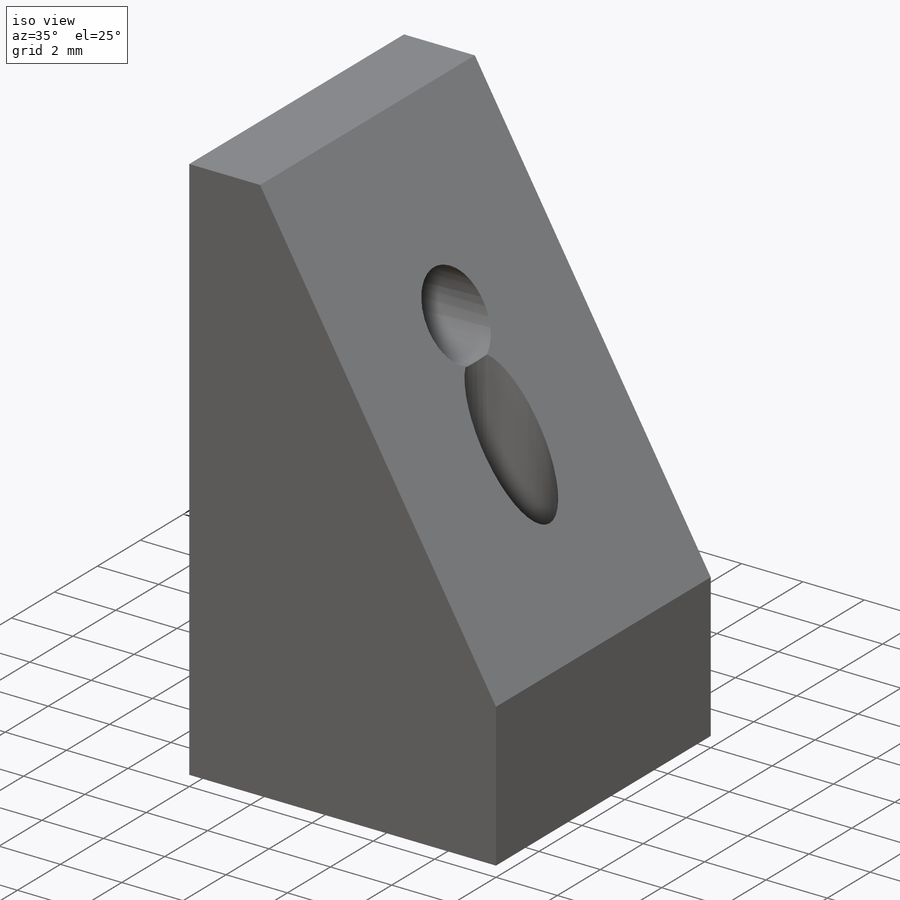
[diagram: iso view]
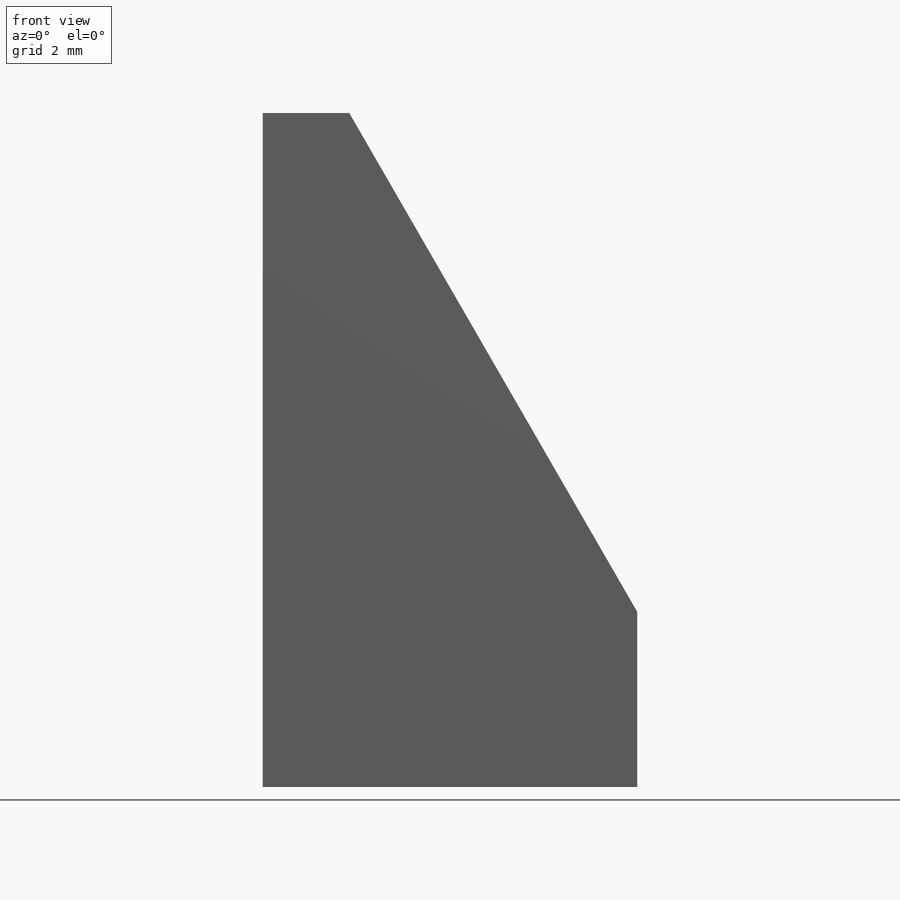
[diagram: front view]
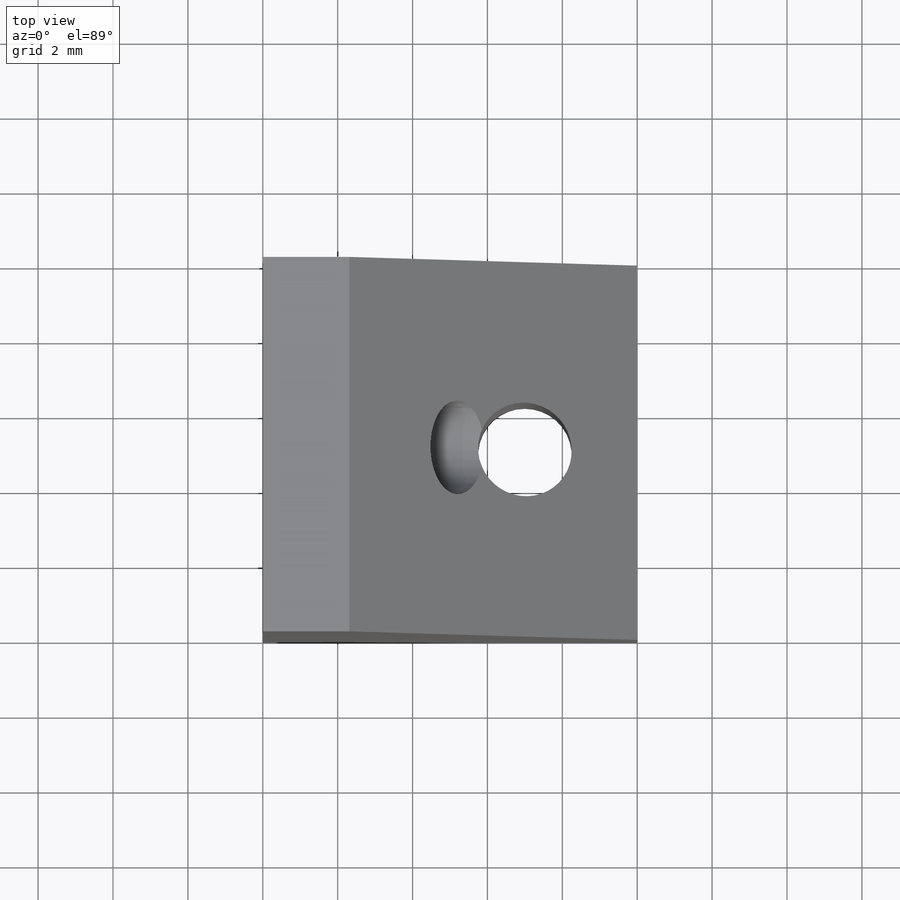
[diagram: top view]
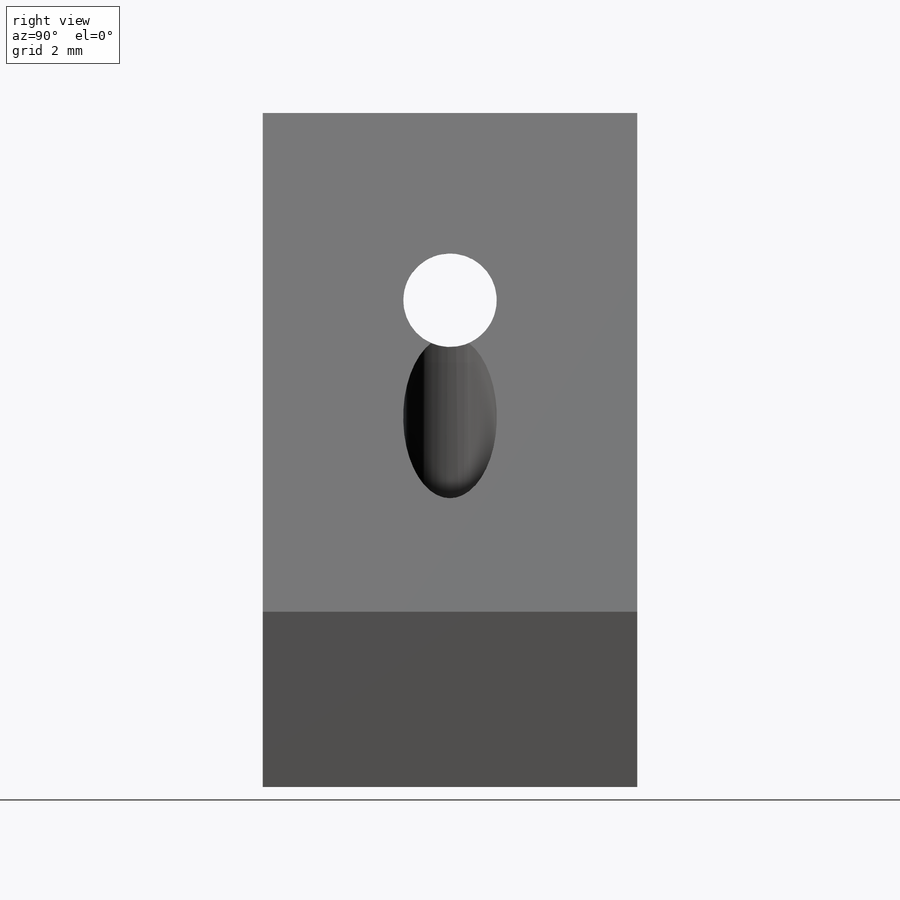
[diagram: right view]
SOLIDWORKS PART (.sldprt)
format: sldprt  version: not decoded by parser v0  size: 221,184 bytes
history: native  units: mm
features: sketch x5, plane x3, hole x2, thread x2, material x1, extrude x1 (+13 scaffold rows collapsed)
feature tree (27):
  scaffold x13  (default folders/planes/origin — collapsed)
  material  "2024-T4"
  plane  "Спереди"
  plane  "Сверху"
  plane  "Справа"
  sketch  "Эскиз1"  dims[c1.D1=18.0mm c1.D2=10.0mm c1.D3=18.0mm c2.D3=30.0deg c2.D4=11.0mm]
  extrude  "Бобышка-Вытянуть1"  Depth=10mm
  hole  "Отверстие обработанное метчиком M31"  [1 undecoded]
  sketch  "Эскиз3"  dims[c1.D1=10.0mm c1.D2=5.0mm c1.D3=3.0mm c2.D1=5.0mm c2.D2=13.0mm]
  thread  "Отверстие резьбы2"  Diameter=3mm  [1 undecoded]
  sketch  "Эскиз2"  dims[hole-wizard template sketch: 55 standard entries collapsed; hole parameters kept: c17.Глубина проходного сверла=~5.196152mm c17.Диаметр передней зенковки=3.2mm c17.D4=~3.666174mm c17.Угол передней зенковки=110.0deg]
  hole  "Отверстие обработанное метчиком M32"  [1 undecoded]
  sketch  "Эскиз5"  dims[D1=5.0mm D2=7.0mm]
  sketch  "Эскиз4"  dims[hole-wizard template sketch: 55 standard entries collapsed; hole parameters kept: c17.Глубина проходного сверла=18.0mm c17.Диаметр передней зенковки=3.3mm c17.D4=~3.666174mm c17.Угол передней зенковки=110.0deg]
  thread  "Отверстие резьбы3"  Diameter=3mm  [1 undecoded]
decode coverage: 8 of 10 modeling features carry decoded parameters
note: ~ marks probable driven/reference dimensions
note: 4 parameter values undecoded
note: suppression state not decoded; provenance and decode notes live in map.json
